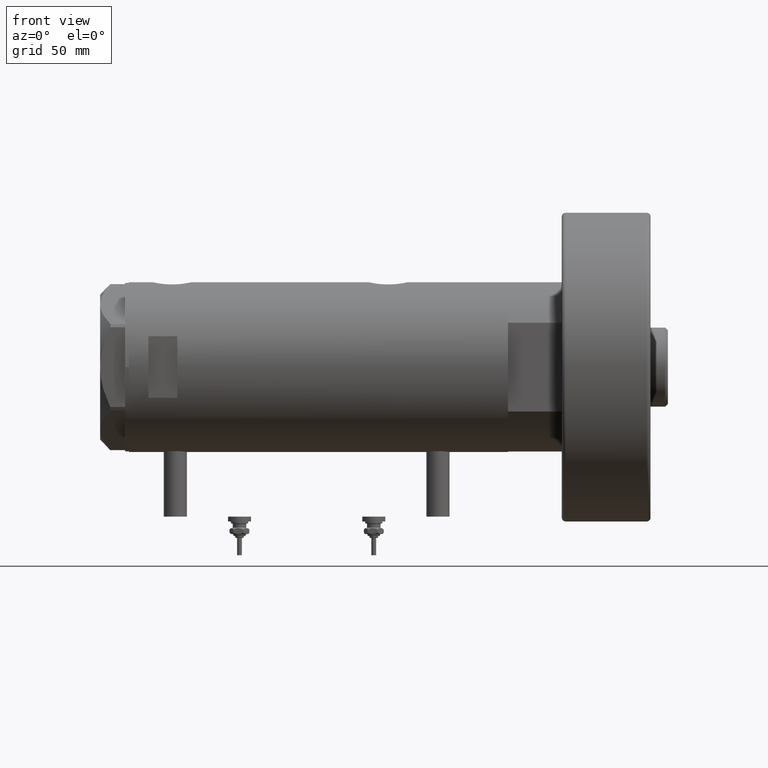
[diagram: clean part render]
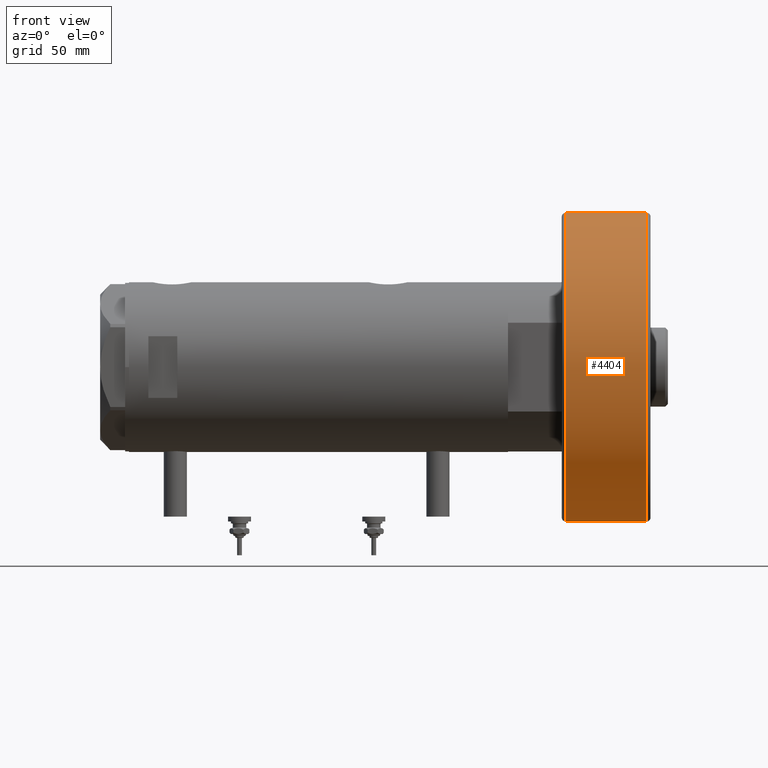
[diagram: same view with one face highlighted and labeled with its STEP entity id]
A machine part, front view. The second image highlights one B-rep face of the part: STEP entity #4404.
In plain terms, the highlighted cylindrical surface (partial cylindrical patch) has radius 80 mm, axis along (-1, -0, 0).
Its self-contained STEP definition (entity closure, byte-faithful):
#73 = DIRECTION ( 'NONE',  ( -0.000000000000000000, -0.000000000000000000, -1.000000000000000000 ) ) ;
#465 = FACE_OUTER_BOUND ( 'NONE', #2191, .T. ) ;
#560 = DIRECTION ( 'NONE',  ( -1.000000000000000000, 0.000000000000000000, 0.000000000000000000 ) ) ;
#586 = VERTEX_POINT ( 'NONE', #5188 ) ;
#637 = DIRECTION ( 'NONE',  ( 0.000000000000000000, 0.000000000000000000, 1.000000000000000000 ) ) ;
#1078 = VERTEX_POINT ( 'NONE', #2711 ) ;
#1098 = CARTESIAN_POINT ( 'NONE',  ( 0.000000000000000000, 0.000000000000000000, 44.00000000000000000 ) ) ;
#1348 = VECTOR ( 'NONE', #4443, 1000.000000000000000 ) ;
#1439 = DIRECTION ( 'NONE',  ( -0.000000000000000000, -0.000000000000000000, -1.000000000000000000 ) ) ;
#1454 = AXIS2_PLACEMENT_3D ( 'NONE', #5425, #1439, #560 ) ;
#1911 = CARTESIAN_POINT ( 'NONE',  ( -80.00000000000000000, 0.000000000000000000, 46.00000000000000000 ) ) ;
#2191 = EDGE_LOOP ( 'NONE', ( #4101, #2737, #5273, #6156 ) ) ;
#2249 = EDGE_CURVE ( 'NONE', #1078, #3187, #2879, .T. ) ;
#2364 = EDGE_CURVE ( 'NONE', #3187, #2505, #6077, .T. ) ;
#2463 = EDGE_CURVE ( 'NONE', #586, #1078, #4431, .T. ) ;
#2505 = VERTEX_POINT ( 'NONE', #4662 ) ;
#2587 = DIRECTION ( 'NONE',  ( 1.000000000000000000, 0.000000000000000000, 0.000000000000000000 ) ) ;
#2711 = CARTESIAN_POINT ( 'NONE',  ( -80.00000000000000000, 0.000000000000000000, 44.00000000000000000 ) ) ;
#2737 = ORIENTED_EDGE ( 'NONE', *, *, #2463, .T. ) ;
#2879 = LINE ( 'NONE', #1911, #1348 ) ;
#3187 = VERTEX_POINT ( 'NONE', #3555 ) ;
#3555 = CARTESIAN_POINT ( 'NONE',  ( -80.00000000000000000, 0.000000000000000000, 2.000000000000001776 ) ) ;
#3584 = CARTESIAN_POINT ( 'NONE',  ( 0.000000000000000000, 0.000000000000000000, 2.000000000000001776 ) ) ;
#3831 = AXIS2_PLACEMENT_3D ( 'NONE', #3584, #637, #5079 ) ;
#4101 = ORIENTED_EDGE ( 'NONE', *, *, #5703, .F. ) ;
#4404 = ADVANCED_FACE ( 'NONE', ( #465 ), #4846, .T. ) ;
#4431 = CIRCLE ( 'NONE', #4919, 80.00000000000000000 ) ;
#4435 = CARTESIAN_POINT ( 'NONE',  ( 80.00000000000000000, 9.797174393178826052E-15, 46.00000000000000000 ) ) ;
#4443 = DIRECTION ( 'NONE',  ( -0.000000000000000000, -0.000000000000000000, -1.000000000000000000 ) ) ;
#4662 = CARTESIAN_POINT ( 'NONE',  ( 80.00000000000000000, 9.797174393178826052E-15, 2.000000000000001776 ) ) ;
#4846 = CYLINDRICAL_SURFACE ( 'NONE', #1454, 80.00000000000000000 ) ;
#4919 = AXIS2_PLACEMENT_3D ( 'NONE', #1098, #73, #2587 ) ;
#5002 = DIRECTION ( 'NONE',  ( -0.000000000000000000, -0.000000000000000000, -1.000000000000000000 ) ) ;
#5055 = VECTOR ( 'NONE', #5002, 1000.000000000000000 ) ;
#5079 = DIRECTION ( 'NONE',  ( 1.000000000000000000, 0.000000000000000000, 0.000000000000000000 ) ) ;
#5188 = CARTESIAN_POINT ( 'NONE',  ( 80.00000000000000000, 9.797174393178826052E-15, 44.00000000000000000 ) ) ;
#5273 = ORIENTED_EDGE ( 'NONE', *, *, #2249, .T. ) ;
#5425 = CARTESIAN_POINT ( 'NONE',  ( 0.000000000000000000, 0.000000000000000000, 46.00000000000000000 ) ) ;
#5703 = EDGE_CURVE ( 'NONE', #586, #2505, #5883, .T. ) ;
#5883 = LINE ( 'NONE', #4435, #5055 ) ;
#6077 = CIRCLE ( 'NONE', #3831, 80.00000000000000000 ) ;
#6156 = ORIENTED_EDGE ( 'NONE', *, *, #2364, .T. ) ;